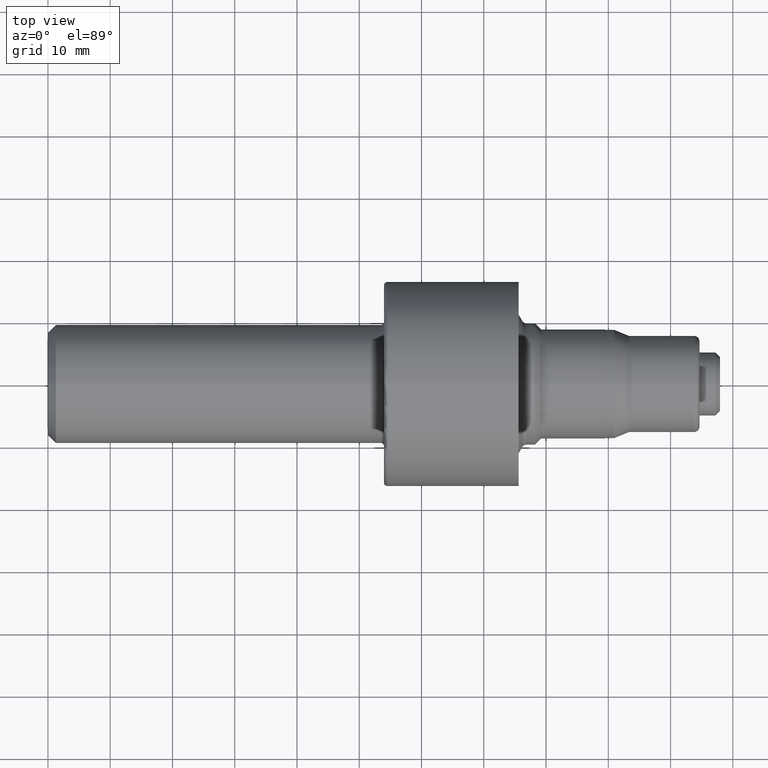
[diagram: clean part render]
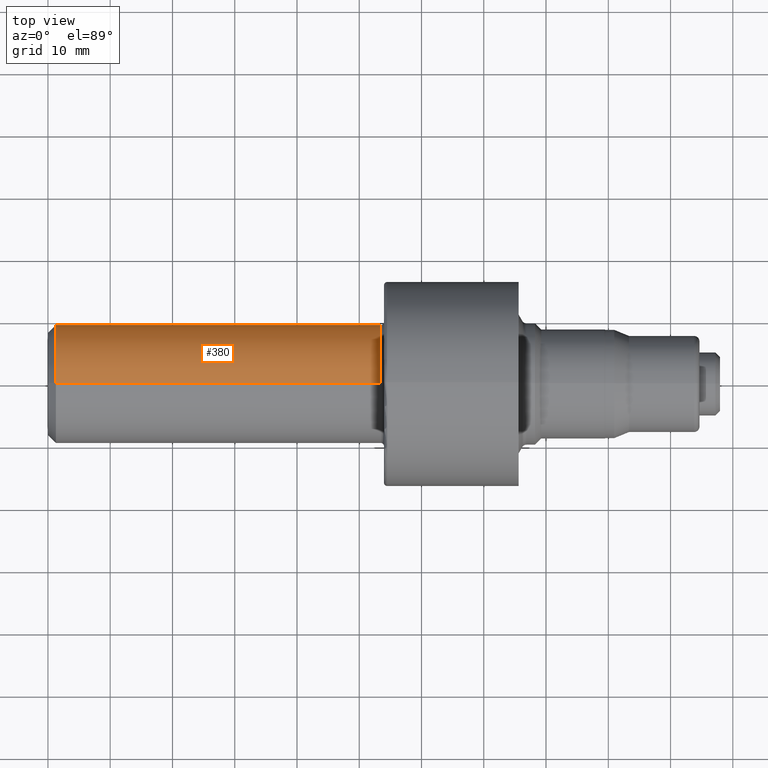
[diagram: same view with one face highlighted and labeled with its STEP entity id]
A machine part, top view. The second image highlights one B-rep face of the part: STEP entity #380.
In plain terms, the highlighted cylindrical surface (partial cylindrical patch) has radius 9.5212 mm, axis along (-1, -0, -0).
Its self-contained STEP definition (entity closure, byte-faithful):
#7 = ORIENTED_EDGE ( 'NONE', *, *, #896, .T. ) ;
#81 = CARTESIAN_POINT ( 'NONE',  ( 0.0000000000000000000, 0.0000000000000000000, 0.3748500000000001275 ) ) ;
#111 = DIRECTION ( 'NONE',  ( 0.0000000000000000000, 0.0000000000000000000, 1.000000000000000000 ) ) ;
#114 = VECTOR ( 'NONE', #583, 39.37007874015748143 ) ;
#182 = AXIS2_PLACEMENT_3D ( 'NONE', #222, #684, #514 ) ;
#194 = CARTESIAN_POINT ( 'NONE',  ( 2.104999999999999982, 0.0000000000000000000, 0.0000000000000000000 ) ) ;
#196 = EDGE_CURVE ( 'NONE', #318, #285, #329, .T. ) ;
#222 = CARTESIAN_POINT ( 'NONE',  ( 0.05000000000000000278, 0.0000000000000000000, 0.0000000000000000000 ) ) ;
#285 = VERTEX_POINT ( 'NONE', #468 ) ;
#288 = DIRECTION ( 'NONE',  ( -1.000000000000000000, -0.0000000000000000000, -0.0000000000000000000 ) ) ;
#318 = VERTEX_POINT ( 'NONE', #610 ) ;
#329 = LINE ( 'NONE', #81, #963 ) ;
#347 = LINE ( 'NONE', #484, #114 ) ;
#380 = ADVANCED_FACE ( 'NONE', ( #848 ), #634, .T. ) ;
#462 = DIRECTION ( 'NONE',  ( -1.000000000000000000, -0.0000000000000000000, -0.0000000000000000000 ) ) ;
#468 = CARTESIAN_POINT ( 'NONE',  ( 0.05000000000000000278, 4.590588526603853748E-17, 0.3748500000000000165 ) ) ;
#484 = CARTESIAN_POINT ( 'NONE',  ( 0.0000000000000000000, 4.590588526603854364E-17, -0.3748500000000001275 ) ) ;
#501 = ORIENTED_EDGE ( 'NONE', *, *, #196, .F. ) ;
#514 = DIRECTION ( 'NONE',  ( 0.0000000000000000000, 0.0000000000000000000, 1.000000000000000000 ) ) ;
#533 = VERTEX_POINT ( 'NONE', #596 ) ;
#581 = EDGE_CURVE ( 'NONE', #318, #616, #777, .T. ) ;
#583 = DIRECTION ( 'NONE',  ( -1.000000000000000000, -0.0000000000000000000, -0.0000000000000000000 ) ) ;
#596 = CARTESIAN_POINT ( 'NONE',  ( 0.05000000000000000278, 0.0000000000000000000, -0.3748500000000000165 ) ) ;
#610 = CARTESIAN_POINT ( 'NONE',  ( 2.104999999999999982, 0.0000000000000000000, 0.3748500000000001275 ) ) ;
#616 = VERTEX_POINT ( 'NONE', #1053 ) ;
#628 = ORIENTED_EDGE ( 'NONE', *, *, #581, .T. ) ;
#634 = CYLINDRICAL_SURFACE ( 'NONE', #1026, 0.3748500000000001275 ) ;
#668 = CARTESIAN_POINT ( 'NONE',  ( 0.0000000000000000000, 0.0000000000000000000, 0.0000000000000000000 ) ) ;
#670 = AXIS2_PLACEMENT_3D ( 'NONE', #194, #728, #111 ) ;
#682 = EDGE_CURVE ( 'NONE', #285, #533, #722, .T. ) ;
#684 = DIRECTION ( 'NONE',  ( -1.000000000000000000, -0.0000000000000000000, -0.0000000000000000000 ) ) ;
#722 = CIRCLE ( 'NONE', #182, 0.3748500000000000165 ) ;
#728 = DIRECTION ( 'NONE',  ( -1.000000000000000000, -0.0000000000000000000, -0.0000000000000000000 ) ) ;
#777 = CIRCLE ( 'NONE', #670, 0.3748500000000001275 ) ;
#848 = FACE_OUTER_BOUND ( 'NONE', #912, .T. ) ;
#896 = EDGE_CURVE ( 'NONE', #616, #533, #347, .T. ) ;
#897 = ORIENTED_EDGE ( 'NONE', *, *, #682, .F. ) ;
#912 = EDGE_LOOP ( 'NONE', ( #628, #7, #897, #501 ) ) ;
#913 = DIRECTION ( 'NONE',  ( 0.0000000000000000000, 0.0000000000000000000, 1.000000000000000000 ) ) ;
#963 = VECTOR ( 'NONE', #462, 39.37007874015748143 ) ;
#1026 = AXIS2_PLACEMENT_3D ( 'NONE', #668, #288, #913 ) ;
#1053 = CARTESIAN_POINT ( 'NONE',  ( 2.104999999999999982, 4.590588526603854364E-17, -0.3748500000000001275 ) ) ;